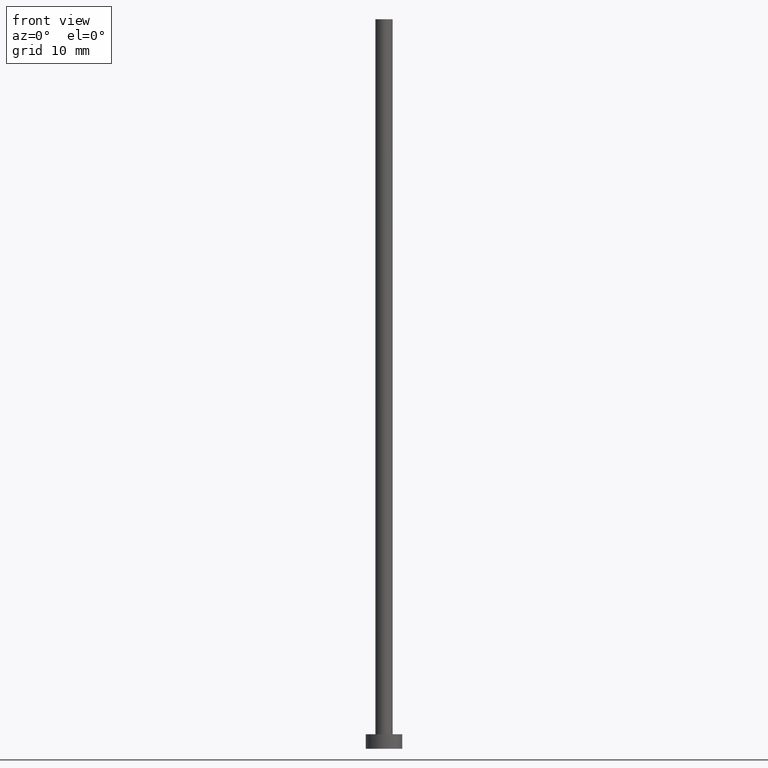
[diagram: clean part render]
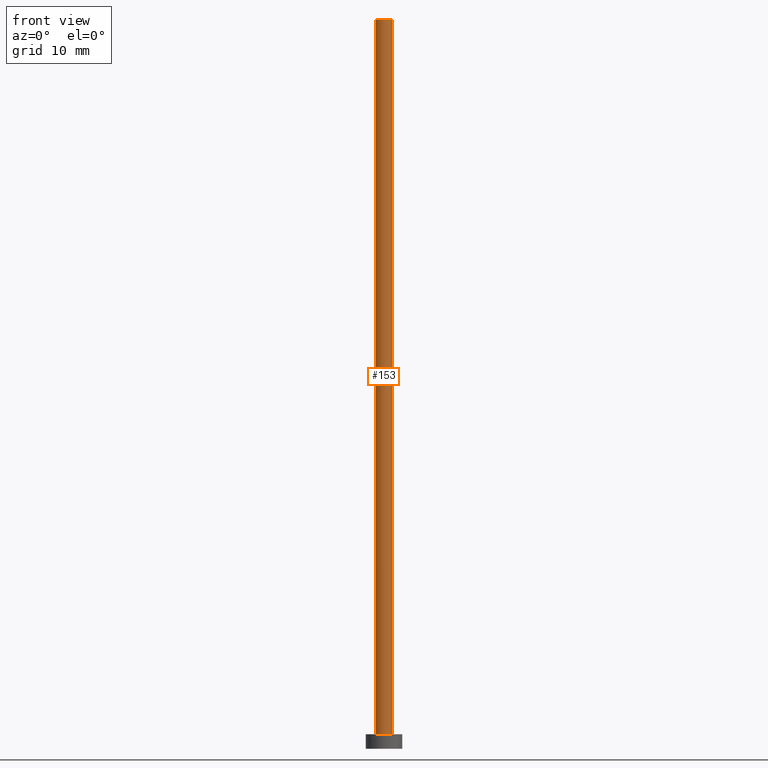
[diagram: same view with one face highlighted and labeled with its STEP entity id]
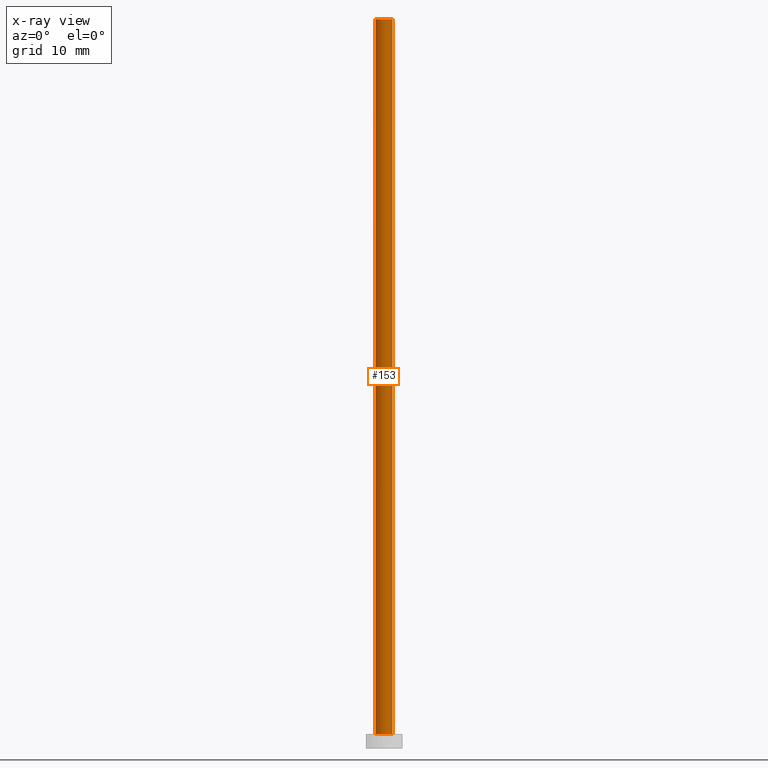
[diagram: x-ray of the same camera — body ghosted, the highlighted face saturated]
A machine part, front view. The second image highlights one B-rep face of the part: STEP entity #153.
The next image is the same camera in x-ray: the body ghosted, the highlighted face saturated — about 0% of this face is hidden behind the body in this view.
In plain terms, the highlighted cylindrical surface (edge-blend (fillet) strip) has radius 1.175 mm, axis along (-0, -0, -1).
Its self-contained STEP definition (entity closure, byte-faithful):
#1 = DIRECTION ( 'NONE',  ( -0.000000000000000000, -0.000000000000000000, -1.000000000000000000 ) ) ;
#4 = LINE ( 'NONE', #130, #234 ) ;
#5 = DIRECTION ( 'NONE',  ( 1.000000000000000000, 0.000000000000000000, 0.000000000000000000 ) ) ;
#6 = EDGE_CURVE ( 'NONE', #80, #147, #4, .T. ) ;
#7 = CYLINDRICAL_SURFACE ( 'NONE', #121, 1.175000000000000044 ) ;
#9 = CARTESIAN_POINT ( 'NONE',  ( 0.000000000000000000, 0.000000000000000000, 100.0000000000000000 ) ) ;
#11 = FACE_OUTER_BOUND ( 'NONE', #19, .T. ) ;
#19 = EDGE_LOOP ( 'NONE', ( #171, #170, #39, #190 ) ) ;
#24 = DIRECTION ( 'NONE',  ( -0.000000000000000000, -0.000000000000000000, -1.000000000000000000 ) ) ;
#39 = ORIENTED_EDGE ( 'NONE', *, *, #6, .T. ) ;
#46 = DIRECTION ( 'NONE',  ( -0.000000000000000000, -0.000000000000000000, -1.000000000000000000 ) ) ;
#58 = CIRCLE ( 'NONE', #133, 1.175000000000000044 ) ;
#64 = LINE ( 'NONE', #158, #97 ) ;
#80 = VERTEX_POINT ( 'NONE', #137 ) ;
#85 = CARTESIAN_POINT ( 'NONE',  ( 0.000000000000000000, 0.000000000000000000, 2.000000000000000000 ) ) ;
#86 = AXIS2_PLACEMENT_3D ( 'NONE', #85, #195, #245 ) ;
#97 = VECTOR ( 'NONE', #46, 1000.000000000000000 ) ;
#109 = DIRECTION ( 'NONE',  ( 0.000000000000000000, 0.000000000000000000, 1.000000000000000000 ) ) ;
#121 = AXIS2_PLACEMENT_3D ( 'NONE', #173, #24, #247 ) ;
#122 = EDGE_CURVE ( 'NONE', #186, #206, #64, .T. ) ;
#130 = CARTESIAN_POINT ( 'NONE',  ( -1.175000000000000044, 0.000000000000000000, 100.0000000000000000 ) ) ;
#133 = AXIS2_PLACEMENT_3D ( 'NONE', #9, #109, #5 ) ;
#137 = CARTESIAN_POINT ( 'NONE',  ( -1.175000000000000044, 0.000000000000000000, 100.0000000000000000 ) ) ;
#145 = EDGE_CURVE ( 'NONE', #147, #206, #150, .T. ) ;
#147 = VERTEX_POINT ( 'NONE', #212 ) ;
#148 = EDGE_CURVE ( 'NONE', #80, #186, #58, .T. ) ;
#150 = CIRCLE ( 'NONE', #86, 1.175000000000000044 ) ;
#153 = ADVANCED_FACE ( 'NONE', ( #11 ), #7, .T. ) ;
#154 = CARTESIAN_POINT ( 'NONE',  ( 1.175000000000000044, 1.438959988998139914E-16, 100.0000000000000000 ) ) ;
#155 = CARTESIAN_POINT ( 'NONE',  ( 1.175000000000000044, 1.438959988998139914E-16, 2.000000000000000000 ) ) ;
#158 = CARTESIAN_POINT ( 'NONE',  ( 1.175000000000000044, 1.438959988998139914E-16, 100.0000000000000000 ) ) ;
#170 = ORIENTED_EDGE ( 'NONE', *, *, #148, .F. ) ;
#171 = ORIENTED_EDGE ( 'NONE', *, *, #122, .F. ) ;
#173 = CARTESIAN_POINT ( 'NONE',  ( 0.000000000000000000, 0.000000000000000000, 100.0000000000000000 ) ) ;
#186 = VERTEX_POINT ( 'NONE', #154 ) ;
#190 = ORIENTED_EDGE ( 'NONE', *, *, #145, .T. ) ;
#195 = DIRECTION ( 'NONE',  ( 0.000000000000000000, 0.000000000000000000, 1.000000000000000000 ) ) ;
#206 = VERTEX_POINT ( 'NONE', #155 ) ;
#212 = CARTESIAN_POINT ( 'NONE',  ( -1.175000000000000044, 0.000000000000000000, 2.000000000000000000 ) ) ;
#234 = VECTOR ( 'NONE', #1, 1000.000000000000000 ) ;
#245 = DIRECTION ( 'NONE',  ( 1.000000000000000000, 0.000000000000000000, 0.000000000000000000 ) ) ;
#247 = DIRECTION ( 'NONE',  ( -1.000000000000000000, 0.000000000000000000, 0.000000000000000000 ) ) ;